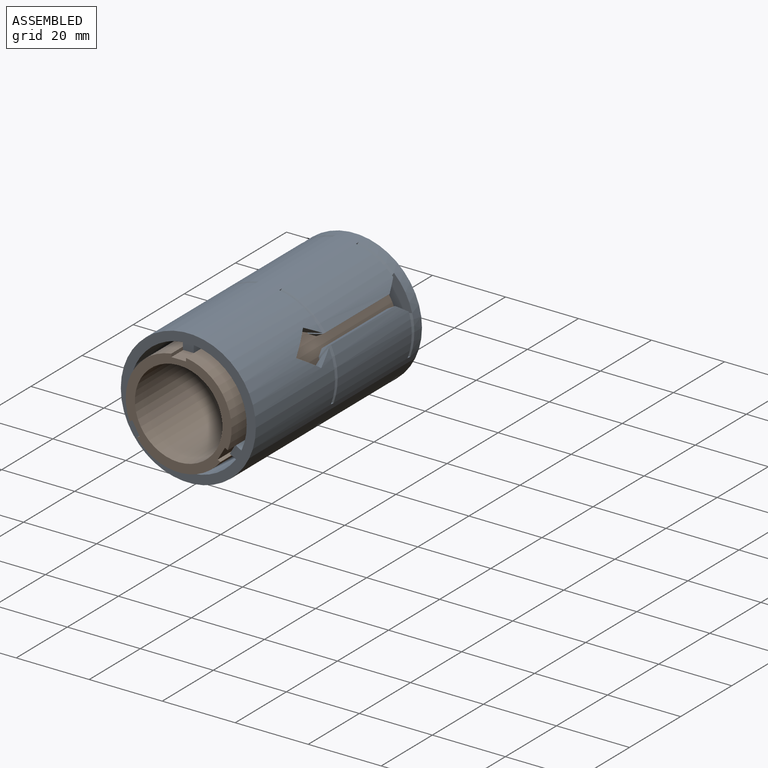
[diagram: assembled view]
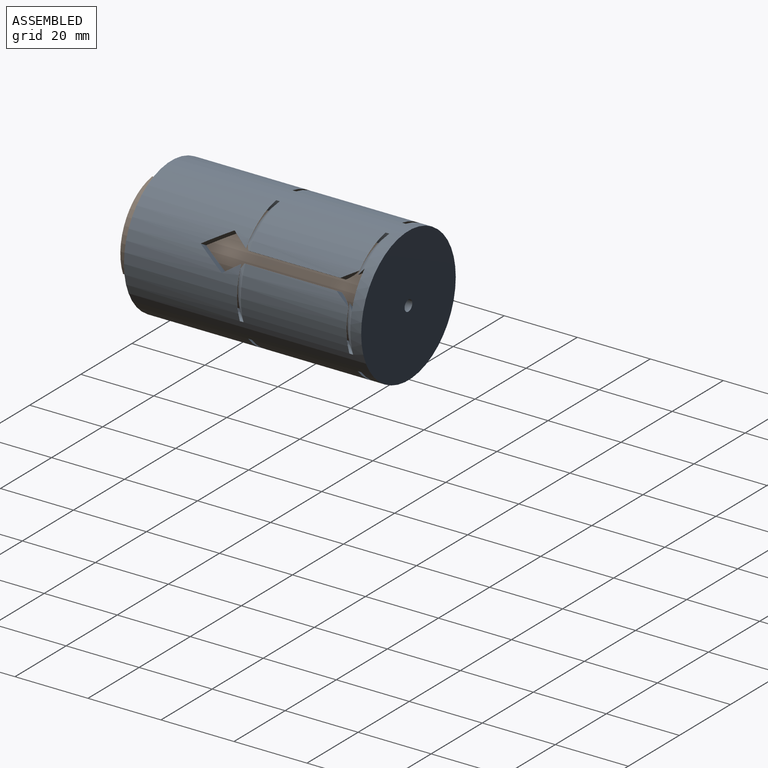
[diagram: assembled view, second angle]
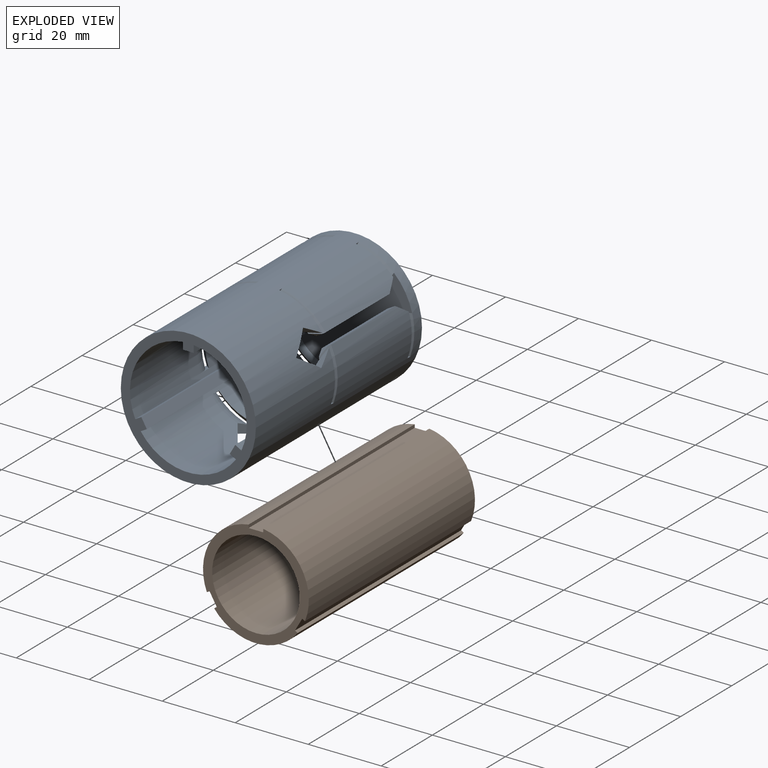
[diagram: exploded view]
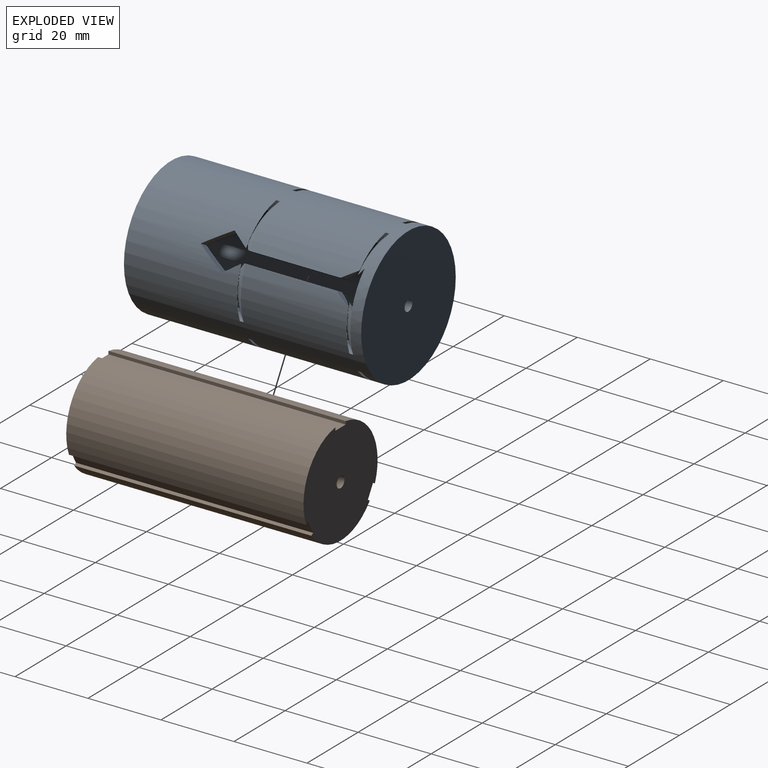
[diagram: exploded view, second angle]
ASSEMBLY  parts=2 mates=2
PART A: 102 faces, bbox 45.1x65.1x45.6 mm
  f0: cylinder r=18.5mm len=65mm, axis (0,1,0), area 6632.2mm2, adj f1,f2,f3,f5,f6,f9,f10,f12
  f1: cylinder r=18.5mm len=29mm, axis (0,1,0), area 231.7mm2, adj f0,f12,f58,f75,f76
  f2: cone r=18.5mm half-angle=45deg, axis (0,1,0), area 38.6mm2, adj f0,f8,f81,f99
  f3: cone r=16mm half-angle=45deg, axis (0,1,0), area 17.2mm2, adj f0,f81,f83,f95
  f4: torus R=21mm, axis (0,-1,0), area 46.9mm2, adj f8,f80,f82,f97,f98
  f5: cone r=18.5mm half-angle=45deg, axis (0,1,0), area 46mm2, adj f0,f8,f87,f96,f97
  f6: cone r=16mm half-angle=45deg, axis (0,1,0), area 19.8mm2, adj f0,f7,f87,f91
  f7: torus R=21mm, axis (0,-1,0), area 41.9mm2, adj f6,f8,f87,f91
  f8: cylinder r=16mm len=62mm, axis (0,1,0), area 1579.1mm2, adj f2,f4,f5,f7,f23,f24,f27,f31
  f9: cone r=18.5mm half-angle=45deg, axis (0,1,0), area 38.6mm2, adj f0,f15,f59,f77
  f10: cone r=16mm half-angle=45deg, axis (0,1,0), area 17.2mm2, adj f0,f59,f61,f73
  f11: torus R=21mm, axis (0,-1,0), area 46.9mm2, adj f15,f58,f60,f75,f76
  f12: cone r=18.5mm half-angle=45deg, axis (0,1,0), area 46mm2, adj f0,f1,f15,f65,f74,f75
  f13: cone r=16mm half-angle=45deg, axis (0,1,0), area 19.8mm2, adj f0,f14,f65,f69
  f14: torus R=21mm, axis (0,-1,0), area 41.9mm2, adj f13,f15,f65,f69
  f15: cylinder r=16mm len=62mm, axis (0,1,0), area 1579.1mm2, adj f9,f11,f12,f14,f23,f24,f28,f33
  f16: cone r=18.5mm half-angle=45deg, axis (0,1,0), area 38.6mm2, adj f0,f22,f37,f55
  f17: cone r=16mm half-angle=45deg, axis (0,1,0), area 17.2mm2, adj f0,f37,f39,f51
  f18: torus R=21mm, axis (0,-1,0), area 46.9mm2, adj f22,f36,f38,f53,f54
  f19: cone r=18.5mm half-angle=45deg, axis (0,1,0), area 46mm2, adj f0,f22,f43,f52,f53
  f20: cone r=16mm half-angle=45deg, axis (0,1,0), area 19.8mm2, adj f0,f21,f43,f47
  f21: torus R=21mm, axis (0,-1,0), area 41.9mm2, adj f20,f22,f43,f47
  f22: cylinder r=16mm len=62mm, axis (0,1,0), area 1579.1mm2, adj f16,f18,f19,f21,f23,f24,f30,f34
  f23: plane 35.85x34.43mm, normal (0,-1,0), area 855.5mm2, adj f0,f8,f15,f22,f26,f27,f28,f29
  f24: plane 37x37mm, normal (0,-1,0), area 288.8mm2, adj f0,f8,f15,f22,f26,f27,f28,f29
  f25: plane 37x37mm, normal (0,1,0), area 1068.1mm2, adj f0,f101
  f26: plane 62x3mm, normal (-1,0,0), area 186mm2, adj f23,f24,f27,f28
  f27: plane 62x1.93mm, normal (0,0,1), area 119.6mm2, adj f8,f23,f24,f26
  f28: plane 62x1.93mm, normal (0,0,-1), area 119.6mm2, adj f15,f23,f24,f26
  f29: plane 62x2.6mm, normal (0.5,0,-0.87), area 186mm2, adj f23,f24,f30,f31
  f30: plane 62x1.67mm, normal (-0.87,0,-0.5), area 119.6mm2, adj f22,f23,f24,f29
  f31: plane 62x1.67mm, normal (0.87,0,0.5), area 119.6mm2, adj f8,f23,f24,f29
  f32: plane 62x2.6mm, normal (0.5,0,0.87), area 186mm2, adj f23,f24,f33,f34
  f33: plane 62x1.67mm, normal (0.87,0,-0.5), area 119.6mm2, adj f15,f23,f24,f32
  f34: plane 62x1.67mm, normal (-0.87,0,0.5), area 119.6mm2, adj f22,f23,f24,f32
  f35: cone r=18.5mm half-angle=45deg, axis (0,1,0), area 38.6mm2, adj f0,f22,f38,f56
  f36: cone r=16mm half-angle=45deg, axis (0,1,0), area 17.2mm2, adj f0,f18,f38,f54
  f37: plane 5.57x1.92mm, normal (-0.77,0,0.64), area 3mm2, adj f0,f16,f17,f22,f39
  f38: plane 5.57x1.92mm, normal (-0.77,0,-0.64), area 3mm2, adj f0,f18,f22,f35,f36
  f39: torus R=21mm, axis (0,-1,0), area 46.9mm2, adj f17,f22,f37,f49,f51
  f40: cone r=18.5mm half-angle=45deg, axis (0,1,0), area 46mm2, adj f0,f22,f42,f49,f50
  f41: cone r=16mm half-angle=45deg, axis (0,1,0), area 19.8mm2, adj f0,f42,f44,f45
  f42: plane 5.57x1.92mm, normal (-0.77,0,0.64), area 3mm2, adj f0,f22,f40,f41,f44
  f43: plane 5.57x1.92mm, normal (-0.77,0,-0.64), area 3mm2, adj f0,f19,f20,f21,f22
  f44: torus R=21mm, axis (0,-1,0), area 41.9mm2, adj f22,f41,f42,f45
  f45: plane 4.61x3.25mm, normal (0,-0.57,0.82), area 9.7mm2, adj f0,f41,f44,f46
  f46: plane 7.23x5.09mm, normal (0,0.57,0.82), area 22.1mm2, adj f0,f22,f45,f48
  f47: plane 4.61x3.25mm, normal (0,-0.57,-0.82), area 9.7mm2, adj f0,f20,f21,f48
  f48: plane 7.23x5.09mm, normal (0,0.57,-0.82), area 22.1mm2, adj f0,f22,f46,f47
  f49: plane 25.58x2.51mm, normal (0,0,1), area 64mm2, adj f0,f22,f39,f40,f50,f51
  f50: plane 2.21x2.01mm, normal (0,-0.57,0.82), area 2.3mm2, adj f22,f40,f49
  f51: plane 4.02x2.82mm, normal (0,0.57,0.82), area 7.8mm2, adj f0,f17,f39,f49
  f52: plane 2.21x2.01mm, normal (0,-0.57,-0.82), area 2.3mm2, adj f19,f22,f53
  f53: plane 25.58x2.51mm, normal (0,0,-1), area 64mm2, adj f0,f18,f19,f22,f52,f54
  f54: plane 4.02x2.82mm, normal (0,0.57,-0.82), area 7.8mm2, adj f0,f18,f36,f53
  f55: plane 2.69x2.58mm, normal (0,0.57,0.82), area 4mm2, adj f16,f22,f23
  f56: plane 2.69x2.58mm, normal (0,0.57,-0.82), area 4mm2, adj f22,f23,f35
  f57: cone r=18.5mm half-angle=45deg, axis (0,1,0), area 38.6mm2, adj f0,f15,f60,f78
  f58: cone r=16mm half-angle=45deg, axis (0,1,0), area 17.2mm2, adj f0,f1,f11,f60,f76
  f59: plane 5.57x2.46mm, normal (-0.17,0,-0.98), area 3mm2, adj f0,f9,f10,f15,f61
  f60: plane 5.57x2.35mm, normal (0.94,0,-0.34), area 3mm2, adj f0,f11,f15,f57,f58
  f61: torus R=21mm, axis (0,-1,0), area 46.9mm2, adj f10,f15,f59,f71,f73
  f62: cone r=18.5mm half-angle=45deg, axis (0,1,0), area 46mm2, adj f0,f15,f64,f71,f72
  f63: cone r=16mm half-angle=45deg, axis (0,1,0), area 19.8mm2, adj f0,f64,f66,f67
  f64: plane 5.57x2.46mm, normal (-0.17,0,-0.98), area 3mm2, adj f0,f15,f62,f63,f66
  f65: plane 5.57x2.35mm, normal (0.94,0,-0.34), area 3mm2, adj f0,f12,f13,f14,f15
  f66: torus R=21mm, axis (0,-1,0), area 41.9mm2, adj f15,f63,f64,f67
  f67: plane 4.61x4.42mm, normal (-0.71,-0.57,-0.41), area 9.7mm2, adj f0,f63,f66,f68
  f68: plane 7.23x5.45mm, normal (-0.71,0.57,-0.41), area 22.1mm2, adj f0,f15,f67,f70
  f69: plane 4.61x4.42mm, normal (0.71,-0.57,0.41), area 9.7mm2, adj f0,f13,f14,f70
  f70: plane 7.23x6.07mm, normal (0.71,0.57,0.41), area 22.1mm2, adj f0,f15,f68,f69
  f71: plane 25.58x2.17mm, normal (-0.87,0,-0.5), area 64mm2, adj f0,f15,f61,f62,f72,f73
  f72: plane 2.6x2.01mm, normal (-0.71,-0.57,-0.41), area 2.3mm2, adj f15,f62,f71
  f73: plane 4.02x3.47mm, normal (-0.71,0.57,-0.41), area 7.8mm2, adj f0,f10,f61,f71
  f74: plane 2.32x2.01mm, normal (0.71,-0.57,0.41), area 2.3mm2, adj f12,f15,f75
  f75: plane 25.58x2.17mm, normal (0.87,0,0.5), area 64mm2, adj f1,f11,f12,f15,f74,f76
  f76: plane 4.02x3.18mm, normal (0.71,0.57,0.41), area 7.8mm2, adj f1,f11,f58,f75
  f77: plane 2.67x2.58mm, normal (-0.71,0.57,-0.41), area 4mm2, adj f9,f15,f23
  f78: plane 2.81x2.58mm, normal (0.71,0.57,0.41), area 4mm2, adj f15,f23,f57
  f79: cone r=18.5mm half-angle=45deg, axis (0,1,0), area 38.6mm2, adj f0,f8,f82,f100
  f80: cone r=16mm half-angle=45deg, axis (0,1,0), area 17.2mm2, adj f0,f4,f82,f98
  f81: plane 5.57x2.35mm, normal (0.94,0,0.34), area 3mm2, adj f0,f2,f3,f8,f83
  f82: plane 5.57x2.46mm, normal (-0.17,0,0.98), area 3mm2, adj f0,f4,f8,f79,f80
  f83: torus R=21mm, axis (0,-1,0), area 46.9mm2, adj f3,f8,f81,f93,f95
  f84: cone r=18.5mm half-angle=45deg, axis (0,1,0), area 46mm2, adj f0,f8,f86,f93,f94
  f85: cone r=16mm half-angle=45deg, axis (0,1,0), area 19.8mm2, adj f0,f86,f88,f89
  f86: plane 5.57x2.35mm, normal (0.94,0,0.34), area 3mm2, adj f0,f8,f84,f85,f88
  f87: plane 5.57x2.46mm, normal (-0.17,0,0.98), area 3mm2, adj f0,f5,f6,f7,f8
  f88: torus R=21mm, axis (0,-1,0), area 41.9mm2, adj f8,f85,f86,f89
  f89: plane 4.61x4.42mm, normal (0.71,-0.57,-0.41), area 9.7mm2, adj f0,f85,f88,f90
  f90: plane 7.23x6.07mm, normal (0.71,0.57,-0.41), area 22.1mm2, adj f0,f8,f89,f92
  f91: plane 4.61x4.42mm, normal (-0.71,-0.57,0.41), area 9.7mm2, adj f0,f6,f7,f92
  f92: plane 7.23x5.45mm, normal (-0.71,0.57,0.41), area 22.1mm2, adj f0,f8,f90,f91
  f93: plane 25.58x2.17mm, normal (0.87,0,-0.5), area 64mm2, adj f0,f8,f83,f84,f94,f95
  f94: plane 2.32x2.01mm, normal (0.71,-0.57,-0.41), area 2.3mm2, adj f8,f84,f93
  f95: plane 4.02x3.18mm, normal (0.71,0.57,-0.41), area 7.8mm2, adj f0,f3,f83,f93
  f96: plane 2.6x2.01mm, normal (-0.71,-0.57,0.41), area 2.3mm2, adj f5,f8,f97
  f97: plane 25.58x2.17mm, normal (-0.87,0,0.5), area 64mm2, adj f0,f4,f5,f8,f96,f98
  f98: plane 4.03x3.47mm, normal (-0.71,0.57,0.41), area 7.8mm2, adj f0,f4,f80,f97
  f99: plane 2.81x2.58mm, normal (0.71,0.57,-0.41), area 4mm2, adj f2,f8,f23
  f100: plane 2.67x2.58mm, normal (-0.71,0.57,0.41), area 4mm2, adj f8,f23,f79
  f101: cylinder r=1.5mm len=3mm, axis (0,1,0), area 28.3mm2, adj f23,f25
PART B: 17 faces, bbox 29x65x28.9 mm
  f0: cylinder r=14.5mm len=65mm, axis (0,1,0), area 1713.1mm2, adj f2,f3,f5,f11
  f1: cylinder r=14.5mm len=65mm, axis (0,1,0), area 1713.1mm2, adj f2,f3,f9,f12
  f2: plane 29x28.86mm, normal (0,-1,0), area 196.7mm2, adj f0,f1,f4,f5,f6,f7,f8,f9
  f3: plane 29x28.86mm, normal (0,1,0), area 642mm2, adj f0,f1,f4,f5,f6,f7,f8,f9
  f4: cylinder r=14.5mm len=65mm, axis (0,1,0), area 1713.1mm2, adj f2,f3,f6,f8
  f5: plane 65x0.75mm, normal (-0.5,0,-0.87), area 56mm2, adj f0,f2,f3,f7
  f6: plane 65x0.75mm, normal (0.5,0,0.87), area 56mm2, adj f2,f3,f4,f7
  f7: plane 65x3.46mm, normal (0.87,0,-0.5), area 260mm2, adj f2,f3,f5,f6
  f8: plane 65x0.75mm, normal (-0.5,0,0.87), area 56mm2, adj f2,f3,f4,f10
  f9: plane 65x0.75mm, normal (0.5,0,-0.87), area 56mm2, adj f1,f2,f3,f10
  f10: plane 65x3.46mm, normal (-0.87,0,-0.5), area 260mm2, adj f2,f3,f8,f9
  f11: plane 65x0.86mm, normal (-1,0,0), area 56mm2, adj f0,f2,f3,f13
  f12: plane 65x0.86mm, normal (1,0,0), area 56mm2, adj f1,f2,f3,f13
  f13: plane 65x4mm, normal (0,0,1), area 260mm2, adj f2,f3,f11,f12
  f14: plane 24x24mm, normal (0,-1,0), area 445.3mm2, adj f15,f16
  f15: cylinder r=12mm len=62mm, axis (0,-1,0), area 4674.7mm2, adj f2,f14
  f16: cylinder r=1.5mm len=3mm, axis (0,1,0), area 28.3mm2, adj f3,f14
PLACE A rot(axis=(0,-1,0),90deg) t=(0,3.78,0)mm
PLACE B at identity fixed
MATE parallel B.f8 <-> A.f30  axis (-0.5,0,0.87) through (-11.06,-32.5,-8.7)mm
MATE cylindrical A.f0 <-> B.f0  axis (0,1,0) through (0,-28.72,0)mm
